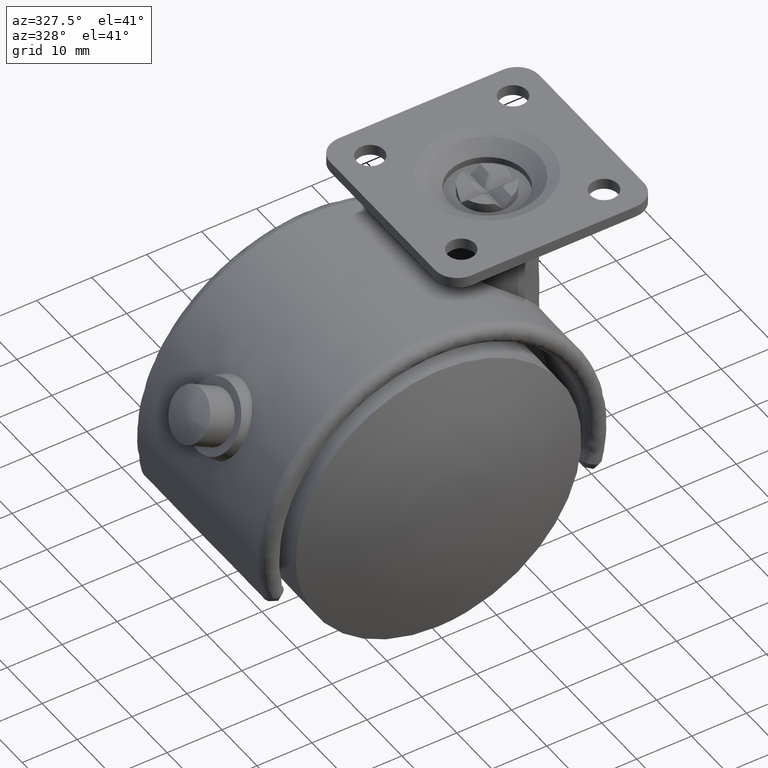
[diagram: clean part render]
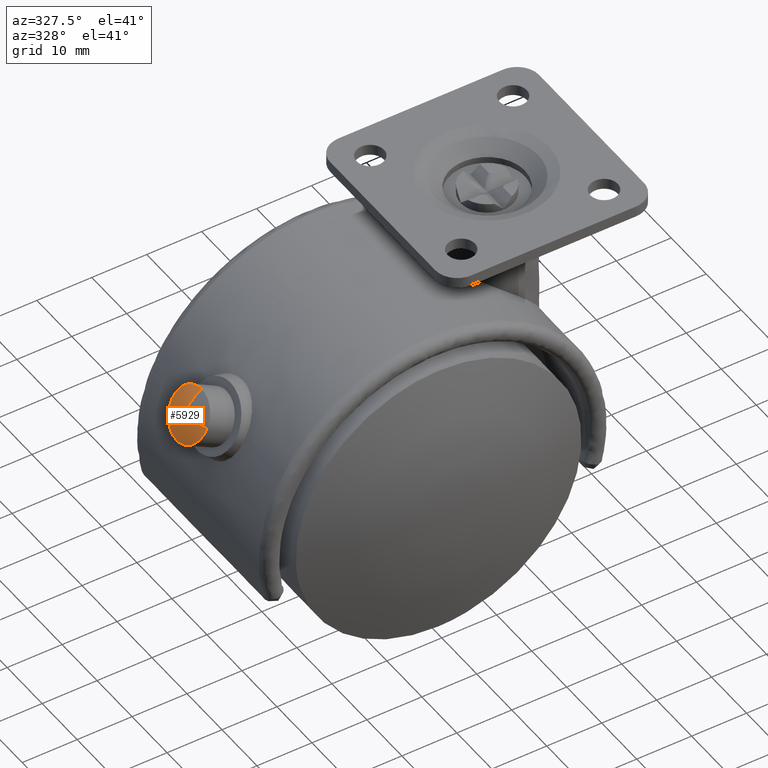
[diagram: same view with one face highlighted and labeled with its STEP entity id]
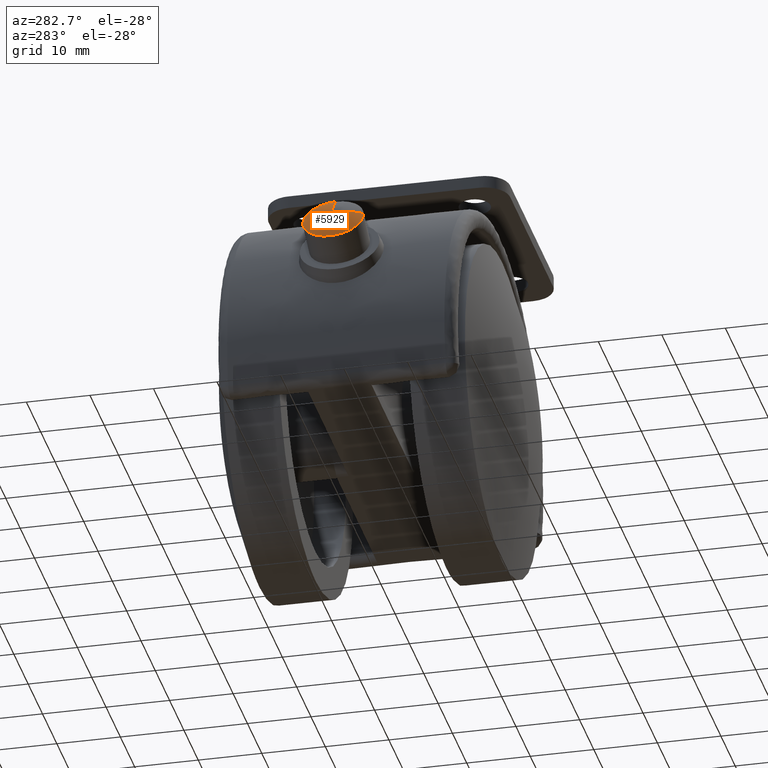
[diagram: same view with one face highlighted and labeled with its STEP entity id]
A machine part, auxiliary view. The second image highlights one B-rep face of the part: STEP entity #5929.
A second angle (auxiliary view) of the same face is appended — the face is thin or edge-on in the first view.
In plain terms, the highlighted face is a freeform B-spline surface patch.
Its self-contained STEP definition (entity closure, byte-faithful):
#4526=CARTESIAN_POINT('',(-31.088010515149900,1.671440724871522,22.487736744491482));
#4527=VERTEX_POINT('',#4526);
#4528=CARTESIAN_POINT('',(-30.940850348531509,0.0,22.753220947870648));
#4529=VERTEX_POINT('',#4528);
#4530=CARTESIAN_POINT('',(-31.088010515149907,1.671440724871522,22.487736744491482));
#4531=CARTESIAN_POINT('',(-30.940849675794034,0.863283365195042,22.753222161521197));
#4532=CARTESIAN_POINT('',(-30.940850348531509,0.0,22.753220947870648));
#4540=(BOUNDED_CURVE()B_SPLINE_CURVE(2,(#4530,#4531,#4532),.UNSPECIFIED.,.F.,.U.)B_SPLINE_CURVE_WITH_KNOTS((3,3),(0.440284247599890,0.500000000000000),.UNSPECIFIED.)CURVE()GEOMETRIC_REPRESENTATION_ITEM()RATIONAL_B_SPLINE_CURVE((0.893499648499614,0.930038644262658,1.0))REPRESENTATION_ITEM(''));
#4541=EDGE_CURVE('',#4527,#4529,#4540,.T.);
#4543=CARTESIAN_POINT('',(-32.979325726704587,-4.721779765514039,19.075706695707119));
#4544=VERTEX_POINT('',#4543);
#4558=CARTESIAN_POINT('',(-35.550000149681267,0.0,14.438087231171520));
#4559=VERTEX_POINT('',#4558);
#4560=CARTESIAN_POINT('',(-32.979325726704587,-4.721779765514039,19.075706695707115));
#4561=CARTESIAN_POINT('',(-33.111927463277361,-4.753573381216040,18.836486828507166));
#4562=CARTESIAN_POINT('',(-33.245422060049343,-4.753573381216040,18.595656198656499));
#4563=CARTESIAN_POINT('',(-35.550000149681274,-4.753573381216041,14.438087231171512));
#4564=CARTESIAN_POINT('',(-35.550000149681267,0.0,14.438087231171520));
#4572=(BOUNDED_CURVE()B_SPLINE_CURVE(2,(#4560,#4561,#4562,#4563,#4564),.UNSPECIFIED.,.F.,.U.)B_SPLINE_CURVE_WITH_KNOTS((3,2,3),(0.729999999969385,0.750000000000000,1.0),.UNSPECIFIED.)CURVE()GEOMETRIC_REPRESENTATION_ITEM()RATIONAL_B_SPLINE_CURVE((0.956886118130403,0.976568542459056,1.0,0.707106781186548,1.0))REPRESENTATION_ITEM(''));
#4573=EDGE_CURVE('',#4544,#4559,#4572,.T.);
#4575=CARTESIAN_POINT('',(-33.386114720849861,4.744706986955221,18.341843339046580));
#4576=VERTEX_POINT('',#4575);
#4577=CARTESIAN_POINT('',(-35.550000149681267,0.0,14.438087231171520));
#4578=CARTESIAN_POINT('',(-35.550000149681281,4.471717988281125,14.438087231171517));
#4579=CARTESIAN_POINT('',(-33.386114720849868,4.744706986955221,18.341843339046580));
#4587=(BOUNDED_CURVE()B_SPLINE_CURVE(2,(#4577,#4578,#4579),.UNSPECIFIED.,.F.,.U.)B_SPLINE_CURVE_WITH_KNOTS((3,3),(0.0,0.239333065040058),.UNSPECIFIED.)CURVE()GEOMETRIC_REPRESENTATION_ITEM()RATIONAL_B_SPLINE_CURVE((1.0,0.719603872847713,0.976072261989175))REPRESENTATION_ITEM(''));
#4588=EDGE_CURVE('',#4559,#4576,#4587,.T.);
#4666=CARTESIAN_POINT('',(-33.386114720849868,4.744706986955221,18.341843339046580));
#4667=CARTESIAN_POINT('',(-33.315835577693136,4.753573212214131,18.468630381788653));
#4668=CARTESIAN_POINT('',(-33.245425106302818,4.753573238897137,18.595654347145569));
#4669=CARTESIAN_POINT('',(-31.649252974130516,4.753573843788291,21.475227649485628));
#4670=CARTESIAN_POINT('',(-31.088010515149904,1.671440724871523,22.487736744491478));
#4678=(BOUNDED_CURVE()B_SPLINE_CURVE(2,(#4666,#4667,#4668,#4669,#4670),.UNSPECIFIED.,.F.,.U.)B_SPLINE_CURVE_WITH_KNOTS((3,2,3),(0.239333065040058,0.250000000000000,0.440284247599890),.UNSPECIFIED.)CURVE()GEOMETRIC_REPRESENTATION_ITEM()RATIONAL_B_SPLINE_CURVE((0.976072261989175,0.987502908338835,1.0,0.777068136923889,0.893499648499614))REPRESENTATION_ITEM(''));
#4679=EDGE_CURVE('',#4576,#4527,#4678,.T.);
#5860=CARTESIAN_POINT('',(-32.858040827140499,-4.951033353925480,19.038946280088698));
#5861=CARTESIAN_POINT('',(-34.113157561950622,-2.640208849762121,19.427547815780549));
#5862=CARTESIAN_POINT('',(-34.294049883914788,-3.446242E-015,19.176920087712471));
#5863=CARTESIAN_POINT('',(-32.997080662219581,-4.984370610804063,18.788111775426138));
#5864=CARTESIAN_POINT('',(-34.187302528627995,-2.657986415442998,19.293786753857848));
#5865=CARTESIAN_POINT('',(-34.294049883914781,-3.469447E-015,19.176920087712471));
#5866=CARTESIAN_POINT('',(-33.137056707250608,-4.984370610804063,18.535588303285845));
#5867=CARTESIAN_POINT('',(-34.261946742558102,-2.657986415442998,19.159125026041195));
#5868=CARTESIAN_POINT('',(-34.294049883914781,-3.469447E-015,19.176920087712471));
#5869=CARTESIAN_POINT('',(-35.553527513329932,-4.984370610804061,14.176159530015937));
#5870=CARTESIAN_POINT('',(-35.550564118230589,-2.657986415442995,16.834397720787003));
#5871=CARTESIAN_POINT('',(-34.294049883914788,0.0,19.176920087712467));
#5872=CARTESIAN_POINT('',(-35.553527513329939,0.0,14.176159530015941));
#5873=CARTESIAN_POINT('',(-35.550564118230611,0.0,16.834397720787006));
#5874=CARTESIAN_POINT('',(-34.294049883914788,0.0,19.176920087712471));
#5875=CARTESIAN_POINT('',(-35.553527513329932,4.984370610804061,14.176159530015937));
#5876=CARTESIAN_POINT('',(-35.550564118230589,2.657986415442998,16.834397720787003));
#5877=CARTESIAN_POINT('',(-34.294049883914788,3.469447E-015,19.176920087712467));
#5878=CARTESIAN_POINT('',(-33.137056707250608,4.984370610804063,18.535588303285845));
#5879=CARTESIAN_POINT('',(-34.261946742558102,2.657986415442998,19.159125026041195));
#5880=CARTESIAN_POINT('',(-34.294049883914781,3.469447E-015,19.176920087712471));
#5881=CARTESIAN_POINT('',(-30.720585901171276,4.984370610804061,22.895017076555749));
#5882=CARTESIAN_POINT('',(-32.973329366885601,2.657986415442995,21.483852331295399));
#5883=CARTESIAN_POINT('',(-34.294049883914788,0.0,19.176920087712467));
#5884=CARTESIAN_POINT('',(-30.720585901171273,0.0,22.895017076555753));
#5885=CARTESIAN_POINT('',(-32.973329366885608,0.0,21.483852331295395));
#5886=CARTESIAN_POINT('',(-34.294049883914781,0.0,19.176920087712471));
#5894=(BOUNDED_SURFACE()B_SPLINE_SURFACE(2,2,((#5860,#5863,#5866,#5869,#5872,#5875,#5878,#5881,#5884),(#5861,#5864,#5867,#5870,#5873,#5876,#5879,#5882,#5885),(#5862,#5865,#5868,#5871,#5874,#5877,#5880,#5883,#5886)),.UNSPECIFIED.,.F.,.F.,.U.)B_SPLINE_SURFACE_WITH_KNOTS((3,3),(3,2,2,2,3),(0.838152575999498,1.0),(0.230000004172325,0.250000000000000,0.500000000000000,0.750000000000000,1.0),.UNSPECIFIED.)GEOMETRIC_REPRESENTATION_ITEM()RATIONAL_B_SPLINE_SURFACE(((0.836214955825781,0.853415262462536,0.873891817168818,0.617934829943506,0.873891817168818,0.617934829943506,0.873891817168818,0.617934829943506,0.873891817168818),(0.867672573748099,0.885519939697243,0.906766803078140,0.641180955411400,0.906766803078140,0.641180955411400,0.906766803078140,0.641180955411400,0.906766803078140),(0.956886126402807,0.976568547383107,1.0,0.707106781186548,1.0,0.707106781186548,1.0,0.707106781186548,1.0)))REPRESENTATION_ITEM('')SURFACE());
#5895=ORIENTED_EDGE('',*,*,#4573,.F.);
#5896=CARTESIAN_POINT('',(-34.294049883914781,-1.856393E-015,19.176920087712471));
#5897=VERTEX_POINT('',#5896);
#5898=CARTESIAN_POINT('',(-32.979325726704595,-4.721779765514039,19.075706695707126));
#5899=CARTESIAN_POINT('',(-34.122601918176670,-2.502363567441183,19.414462598825189));
#5900=CARTESIAN_POINT('',(-34.294049883914781,-3.446242E-015,19.176920087712475));
#5908=(BOUNDED_CURVE()B_SPLINE_CURVE(2,(#5898,#5899,#5900),.UNSPECIFIED.,.F.,.U.)B_SPLINE_CURVE_WITH_KNOTS((3,3),(0.845852282745700,1.0),.UNSPECIFIED.)CURVE()GEOMETRIC_REPRESENTATION_ITEM()RATIONAL_B_SPLINE_CURVE((0.839338786666700,0.871916799359829,0.956886118190660))REPRESENTATION_ITEM(''));
#5909=EDGE_CURVE('',#4544,#5897,#5908,.T.);
#5910=ORIENTED_EDGE('',*,*,#5909,.T.);
#5911=CARTESIAN_POINT('',(-30.940850348531502,0.0,22.753220947870648));
#5912=CARTESIAN_POINT('',(-33.042286177587648,0.0,21.363403918499486));
#5913=CARTESIAN_POINT('',(-34.294049883914781,0.0,19.176920087712471));
#5921=(BOUNDED_CURVE()B_SPLINE_CURVE(2,(#5911,#5912,#5913),.UNSPECIFIED.,.F.,.U.)B_SPLINE_CURVE_WITH_KNOTS((3,3),(0.845852507945818,1.0),.UNSPECIFIED.)CURVE()GEOMETRIC_REPRESENTATION_ITEM()RATIONAL_B_SPLINE_CURVE((0.877156503683783,0.911202395895694,1.0))REPRESENTATION_ITEM(''));
#5922=EDGE_CURVE('',#4529,#5897,#5921,.T.);
#5923=ORIENTED_EDGE('',*,*,#5922,.F.);
#5924=ORIENTED_EDGE('',*,*,#4541,.F.);
#5925=ORIENTED_EDGE('',*,*,#4679,.F.);
#5926=ORIENTED_EDGE('',*,*,#4588,.F.);
#5927=EDGE_LOOP('',(#5895,#5910,#5923,#5924,#5925,#5926));
#5928=FACE_OUTER_BOUND('',#5927,.T.);
#5929=ADVANCED_FACE('',(#5928),#5894,.T.);